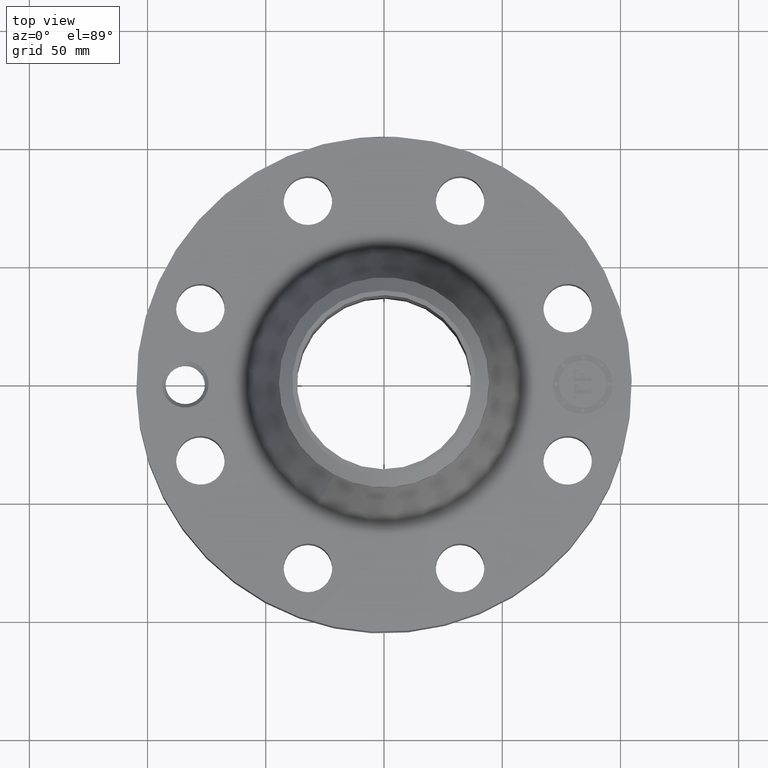
[diagram: clean part render]
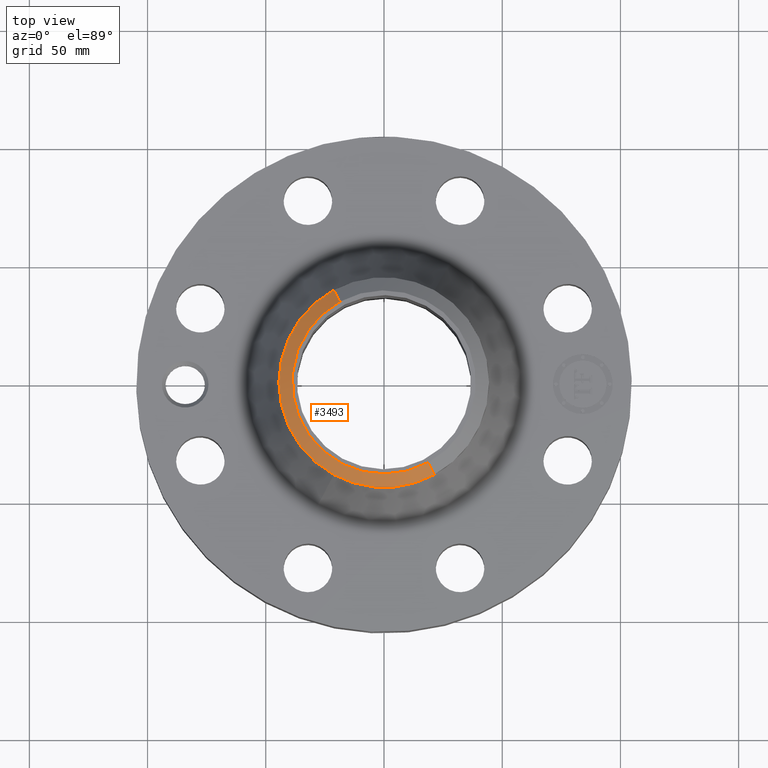
[diagram: same view with one face highlighted and labeled with its STEP entity id]
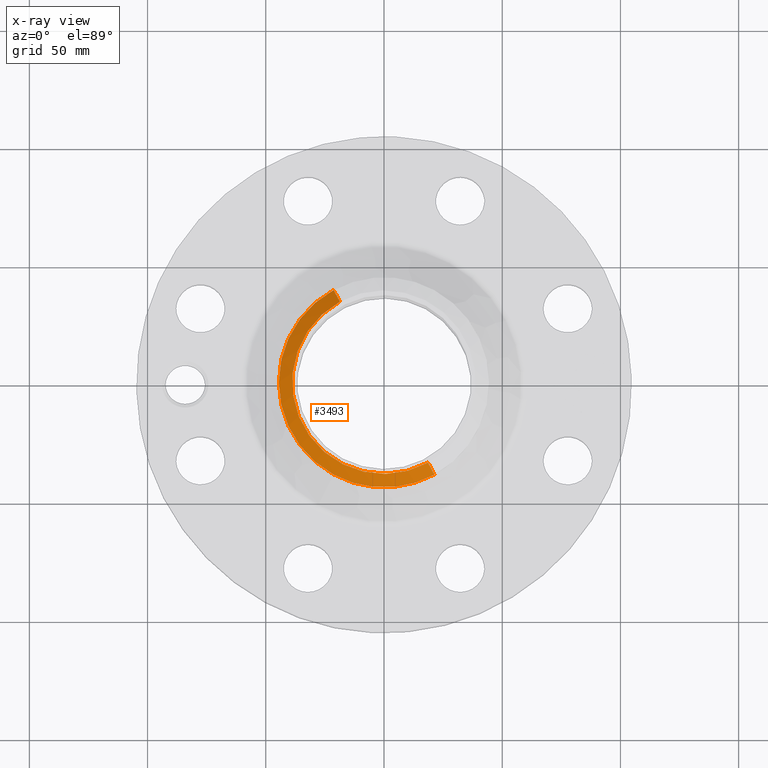
[diagram: x-ray of the same camera — body ghosted, the highlighted face saturated]
A machine part, top view. The second image highlights one B-rep face of the part: STEP entity #3493.
The next image is the same camera in x-ray: the body ghosted, the highlighted face saturated — about 0% of this face is hidden behind the body in this view.
In plain terms, the highlighted conical surface has half-angle 52.5 deg.
Its self-contained STEP definition (entity closure, byte-faithful):
#2577=AXIS2_PLACEMENT_3D('Circle Axis2P3D',#2575,#2576,$) ;
#3458=AXIS2_PLACEMENT_3D('Cone Axis2P3D',#3455,#3456,#3457) ;
#3476=AXIS2_PLACEMENT_3D('Circle Axis2P3D',#3474,#3475,$) ;
#3483=AXIS2_PLACEMENT_3D('Circle Axis2P3D',#3481,#3482,$) ;
#2570=CARTESIAN_POINT('Vertex',(0.732917073389,-1.34159570387,3.56000000001)) ;
#2572=CARTESIAN_POINT('Vertex',(-0.732917073389,1.34159570387,3.56000000001)) ;
#2575=CARTESIAN_POINT('Axis2P3D Location',(0.,0.,3.56000000001)) ;
#3455=CARTESIAN_POINT('Axis2P3D Location',(0.,0.,3.56000000001)) ;
#3460=CARTESIAN_POINT('Line Origine',(0.785955882975,-1.43868259359,3.47511067575)) ;
#3464=CARTESIAN_POINT('Vertex',(0.838994692561,-1.53576948331,3.39022135149)) ;
#3467=CARTESIAN_POINT('Line Origine',(-0.785955882975,1.43868259359,3.47511067575)) ;
#3471=CARTESIAN_POINT('Vertex',(-0.838994692561,1.53576948331,3.39022135149)) ;
#3474=CARTESIAN_POINT('Axis2P3D Location',(0.,0.,3.39022135149)) ;
#3478=CARTESIAN_POINT('Vertex',(-0.838994692561,-1.53576948331,3.39022135149)) ;
#3481=CARTESIAN_POINT('Axis2P3D Location',(0.,0.,3.39022135149)) ;
#2576=DIRECTION('Axis2P3D Direction',(0.,0.,-0.0393700787402)) ;
#3456=DIRECTION('Axis2P3D Direction',(-0.,-0.,-0.0393700787402)) ;
#3457=DIRECTION('Axis2P3D XDirection',(-0.0188750212049,0.0345504945626,0.)) ;
#3461=DIRECTION('Vector Direction',(0.014974561121,-0.02741075027,-0.023966985394)) ;
#3468=DIRECTION('Vector Direction',(-0.014974561121,0.02741075027,-0.023966985394)) ;
#3475=DIRECTION('Axis2P3D Direction',(0.,0.,-0.0393700787402)) ;
#3482=DIRECTION('Axis2P3D Direction',(0.,0.,-0.0393700787402)) ;
#3462=VECTOR('Line Direction',#3461,0.0393700787402) ;
#3469=VECTOR('Line Direction',#3468,0.0393700787402) ;
#3487=ORIENTED_EDGE('',*,*,#3466,.F.) ;
#3488=ORIENTED_EDGE('',*,*,#2579,.F.) ;
#3489=ORIENTED_EDGE('',*,*,#3473,.T.) ;
#3490=ORIENTED_EDGE('',*,*,#3480,.T.) ;
#3491=ORIENTED_EDGE('',*,*,#3485,.F.) ;
#3493=ADVANCED_FACE('PartBody',(#3492),#3459,.T.) ;
#2578=CIRCLE('generated circle',#2577,1.52874015749) ;
#3477=CIRCLE('generated circle',#3476,1.75000000001) ;
#3484=CIRCLE('generated circle',#3483,1.75000000001) ;
#3459=CONICAL_SURFACE('Cone',#3458,1.52874015749,0.916297857297) ;
#2579=EDGE_CURVE('',#2573,#2571,#2578,.F.) ;
#3466=EDGE_CURVE('',#2571,#3465,#3463,.T.) ;
#3473=EDGE_CURVE('',#2573,#3472,#3470,.T.) ;
#3480=EDGE_CURVE('',#3472,#3479,#3477,.F.) ;
#3485=EDGE_CURVE('',#3465,#3479,#3484,.T.) ;
#3486=EDGE_LOOP('',(#3487,#3488,#3489,#3490,#3491)) ;
#3492=FACE_OUTER_BOUND('',#3486,.T.) ;
#3463=LINE('Line',#3460,#3462) ;
#3470=LINE('Line',#3467,#3469) ;
#2571=VERTEX_POINT('',#2570) ;
#2573=VERTEX_POINT('',#2572) ;
#3465=VERTEX_POINT('',#3464) ;
#3472=VERTEX_POINT('',#3471) ;
#3479=VERTEX_POINT('',#3478) ;